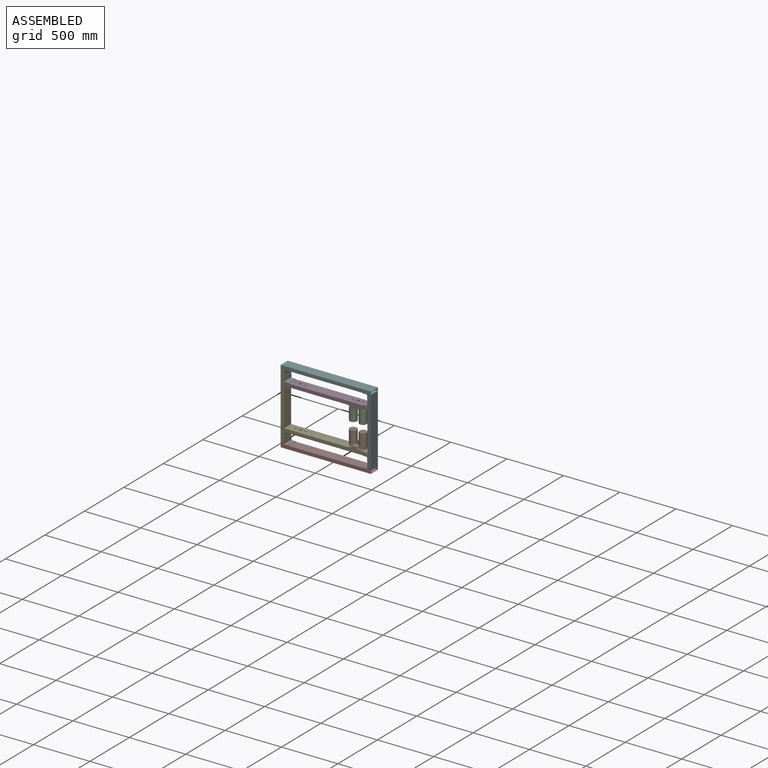
[diagram: assembled view]
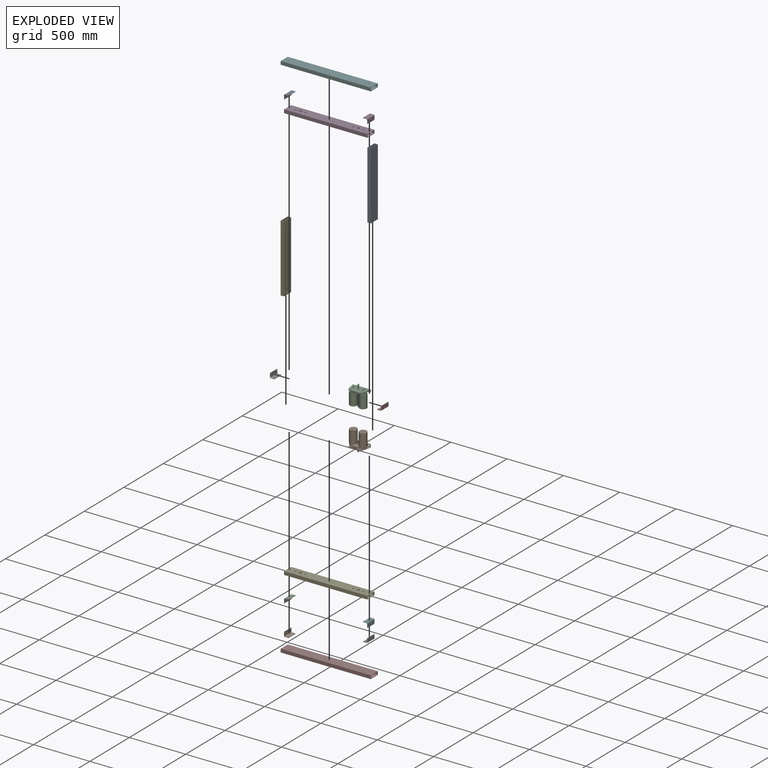
[diagram: exploded view]
GUIDED TOUR — MATED ASSEMBLY WITH SUBASSEMBLIES (Onshape document c86a4f6575f6017475b67a72, AutoMate assembly c86a4f6575f6017475b67a72_9b0eb808f1c5a23047f3c96d_129d4300e8e7a1c445e2efac_default)

This assembly has 30 component occurrences arranged in 16 top-level units: 14 individual components plus 2 subassemblies (S0, S1). The tour has two levels: first the top level, where each subassembly is treated as one rigid unit; then each subassembly is toured internally in its own section (nesting deeper than one subassembly level is flattened into its subassembly's section).

Components are labeled P0..P29 across the whole record; subassembly units are labeled S0..S1. A mate is a constraint between two units; its type names the relative motion it leaves free:
  FASTENED — locks the two components together rigidly (no relative motion).
Axis/direction vectors are unit vectors and 'through' points are millimeter coordinates, both in the assembly's world frame.

TOP-LEVEL MATES (between units; each subassembly's internal mates are listed in its own section)
  1. FASTENED "Fastened 5": P25 <-> P24, direction (0.000, 0.000, 1.000) through (-180.54, -116.82, -42.28) mm
  2. FASTENED "Fastened 12": P10 <-> P3, direction (0.000, 0.000, -1.000) through (-180.54, -116.82, 357.72) mm
  3. FASTENED "Fastened 6": P19 <-> P24, direction (0.000, 0.000, 1.000) through (-856.54, -116.82, -42.28) mm
  4. FASTENED "Fastened 4": P28 <-> P8, direction (0.000, 0.000, 1.000) through (-180.54, -116.82, -142.28) mm
  5. FASTENED "Fastened 9": P5 <-> P11, direction (0.000, 0.000, -1.000) through (-856.54, -116.82, 457.72) mm
  6. FASTENED "Fastened 7": P18 <-> P28, direction (0.000, 0.000, -1.000) through (-856.54, -116.82, -142.28) mm
  7. FASTENED "Fastened 11": S1 <-> P3, direction (0.000, 0.000, 1.000) through (-233.22, -117.31, 327.72) mm
  8. FASTENED "Fastened 13": P27 <-> P3, direction (0.000, 0.000, -1.000) through (-856.54, -116.82, 357.72) mm
  9. FASTENED "Fastened 3": P4 <-> P5, direction (0.000, 0.000, 1.000) through (-918.54, -108.82, 457.72) mm
  10. FASTENED "Fastened 8": P5 <-> P23, direction (0.000, 0.000, -1.000) through (-180.54, -116.82, 457.72) mm
  11. FASTENED "Fastened 10": P24 <-> S0, direction (0.000, 0.000, 1.000) through (-233.22, -117.31, -12.28) mm
  12. FASTENED "Fastened 1": P0 <-> P28, direction (0.000, 0.000, -1.000) through (-118.54, -108.82, -142.28) mm
  13. FASTENED "Fastened 2": P28 <-> P4, direction (0.000, 0.000, 1.000) through (-918.54, -108.82, -142.28) mm

TOP-LEVEL ASSEMBLY ORDER
  1. S0 — the base component [order heuristic]
  2. S1 — core [order heuristic]
  3. P3 — core [order heuristic]
  4. P5 [order verified]
  5. P19 [order verified]
  6. P25 [order verified]
  7. P8 [order verified]
  8. P18 [order verified]
  9. P0 [order verified]
  10. P4 [order verified]
  11. P27 [order verified]
  12. P10 [order verified]
  13. P23 [order verified]
  14. P11 [order verified]
  15. P24 — core [order heuristic]
  16. P28 [order verified]
Order-tag legend:
  [order verified] — this step's position reverses a verified removal order: the component was checked to insert without passing through the ones already placed.
  [order heuristic] — the first 4 components form the assembly's core: parts whose collision-free extraction could not be verified, listed in mate-graph order.

Of the 30 component occurrences, 8 carry the full construction recipe — the FeatureScript program that regenerates the part's solid from scratch; the rest are supplied as boundary geometry only. Each toured unit is shown spotlighted twice — assembled, then exploded with a leader line back to its socket (green = recipe-attached component, orange = geometry-only, blue = subassembly unit; the rest desaturated gray).
NOTE — this tour is split across 3 documents so each fits a 32k-token context. This is document 1: the component sections continue in the remaining 2 documents, each repeating the header above.
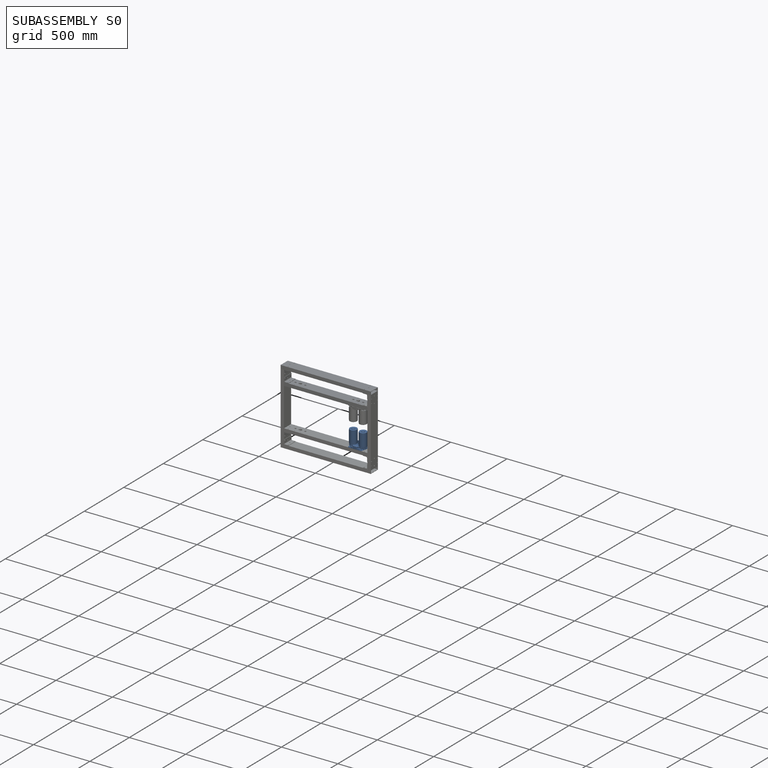
[diagram: subassembly S0 — assembled]
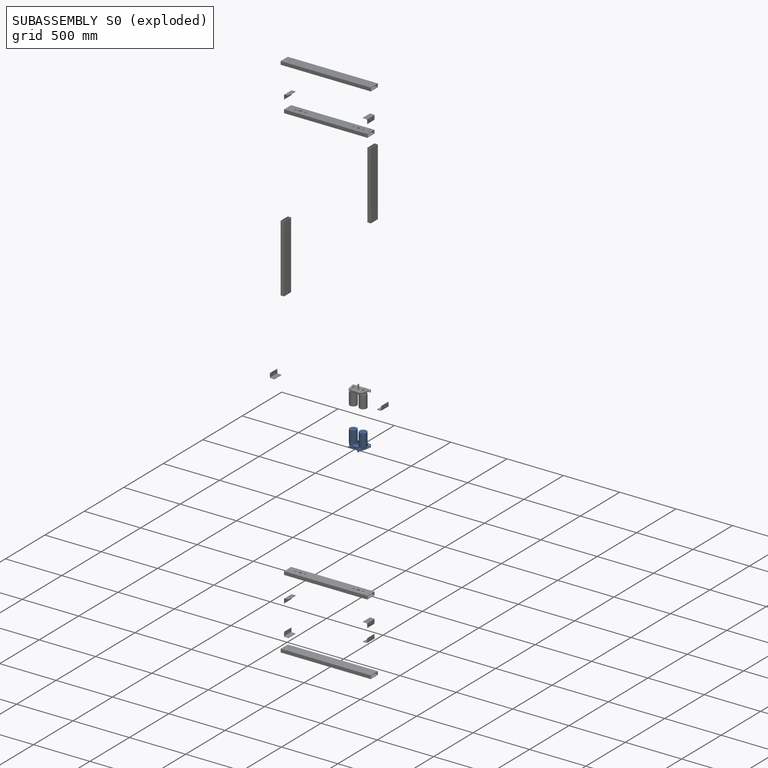
[diagram: subassembly S0 — exploded]
SUBASSEMBLY S0 — 8 components (P1, P6, P9, P13, P15, P16, P20, P22), of which 0 recipe-attached; toured below.
Held by: FASTENED mate "Fastened 10" to P24.
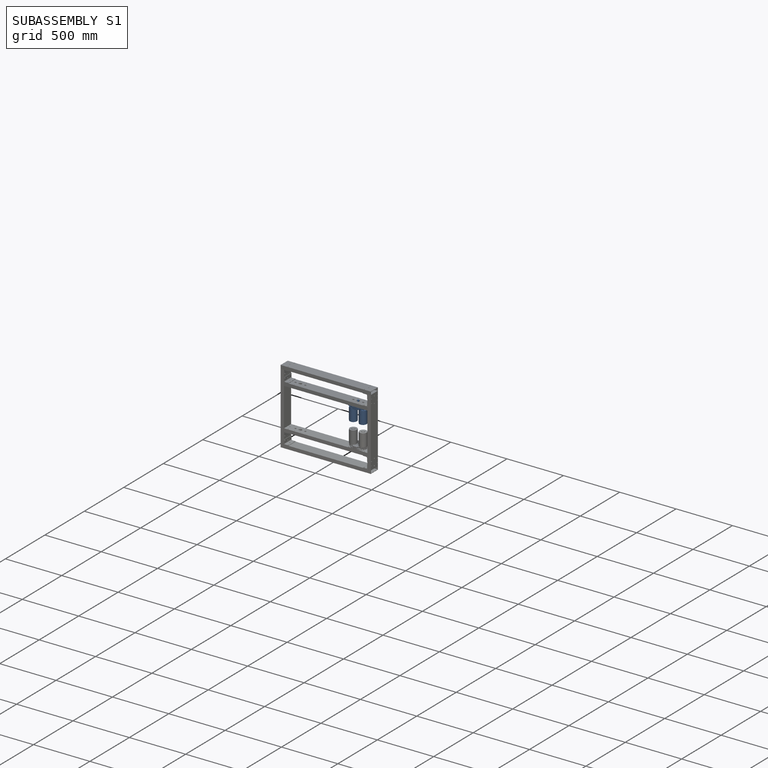
[diagram: subassembly S1 — assembled]
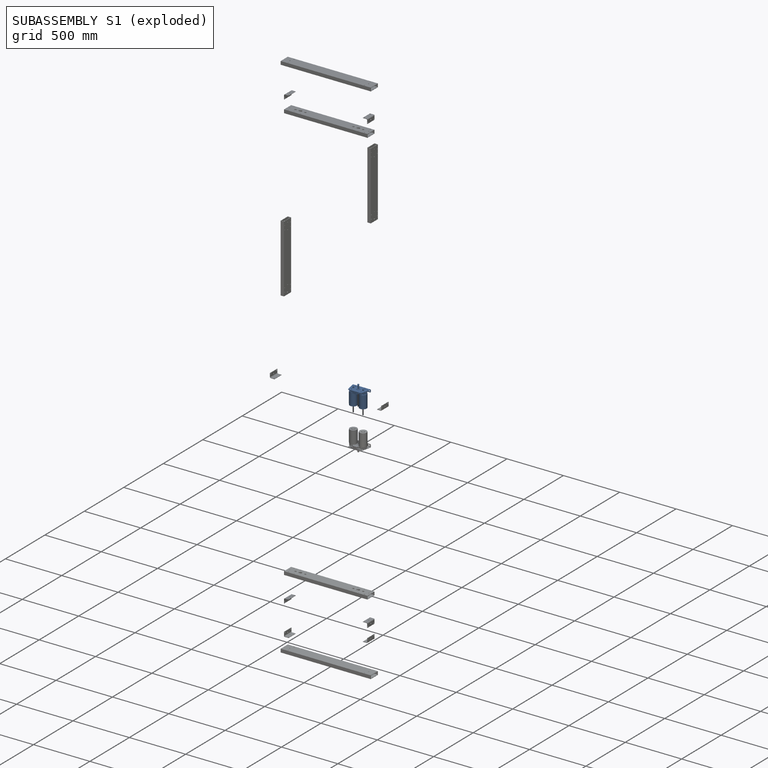
[diagram: subassembly S1 — exploded]
SUBASSEMBLY S1 — 8 components (P2, P7, P12, P14, P17, P21, P26, P29), of which 0 recipe-attached; toured below.
Held by: FASTENED mate "Fastened 11" to P3.
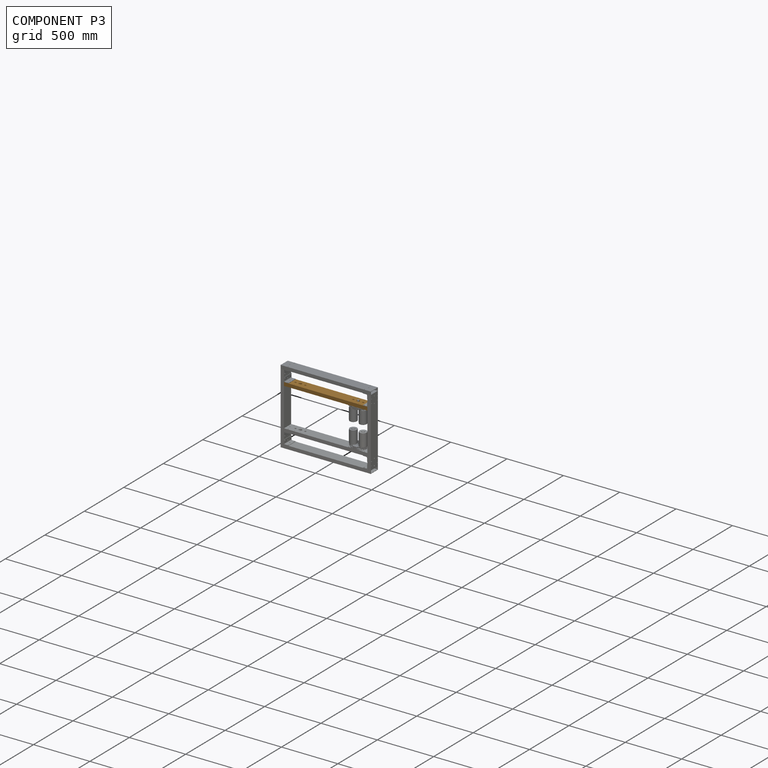
[diagram: component P3 — assembled]
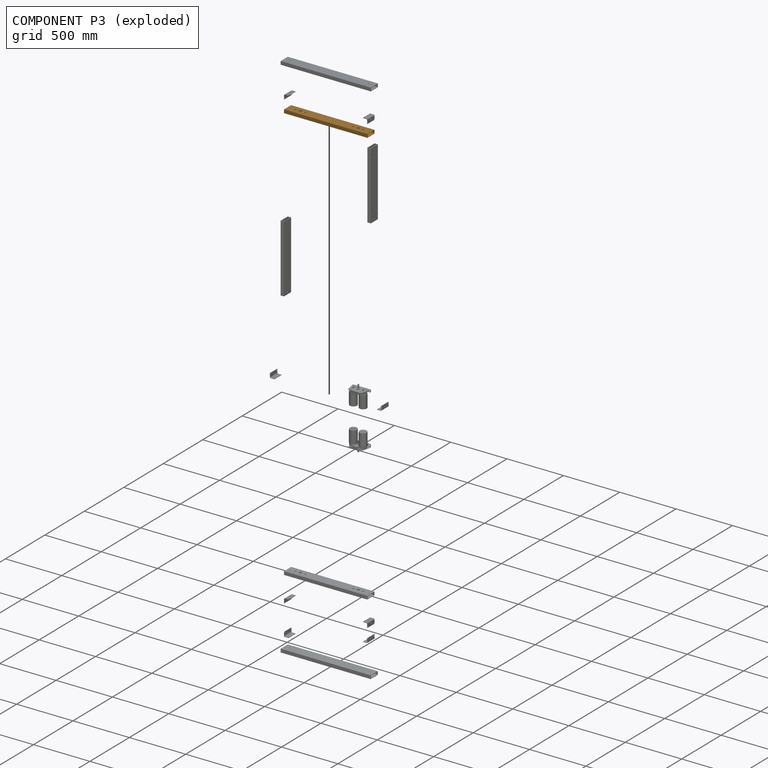
[diagram: component P3 — exploded]
COMPONENT P3 — geometry summary (no construction recipe available for this part):
  bounding box: 740.0 x 90.0 x 30.0 mm
  B-rep topology: 1 solid, 50 faces, 288 edges
  volume: 490446 mm^3 (25% of its bounding box)
  symmetry: 2-fold rotationally symmetric about the x axis; 2-fold rotationally symmetric about the y axis; 2-fold rotationally symmetric about the z axis; mirror-symmetric across its x mid-plane, y mid-plane, z mid-plane
Held by: FASTENED mate "Fastened 12" to P10; FASTENED mate "Fastened 11" to P2; FASTENED mate "Fastened 13" to P27.
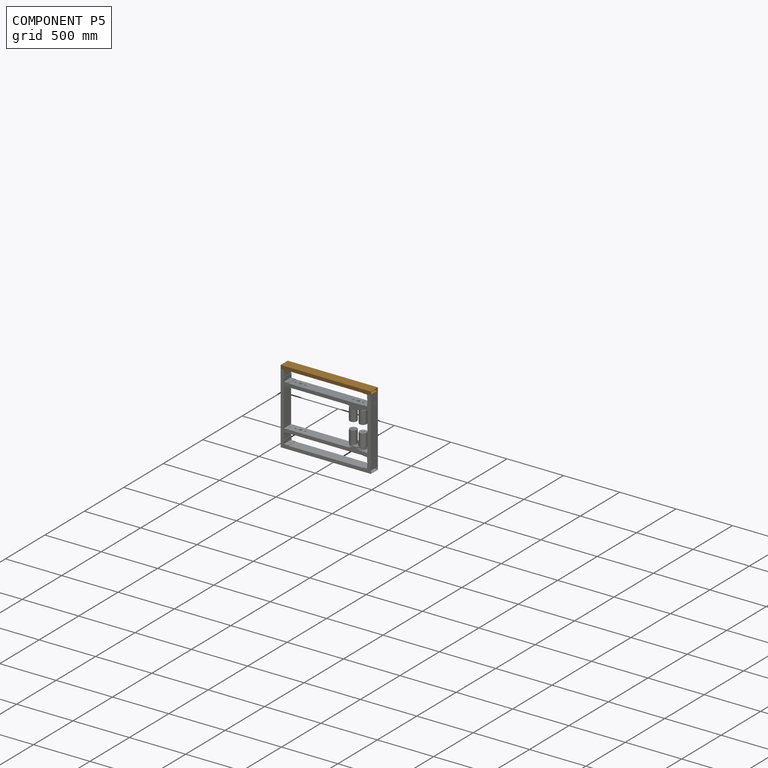
[diagram: component P5 — assembled]
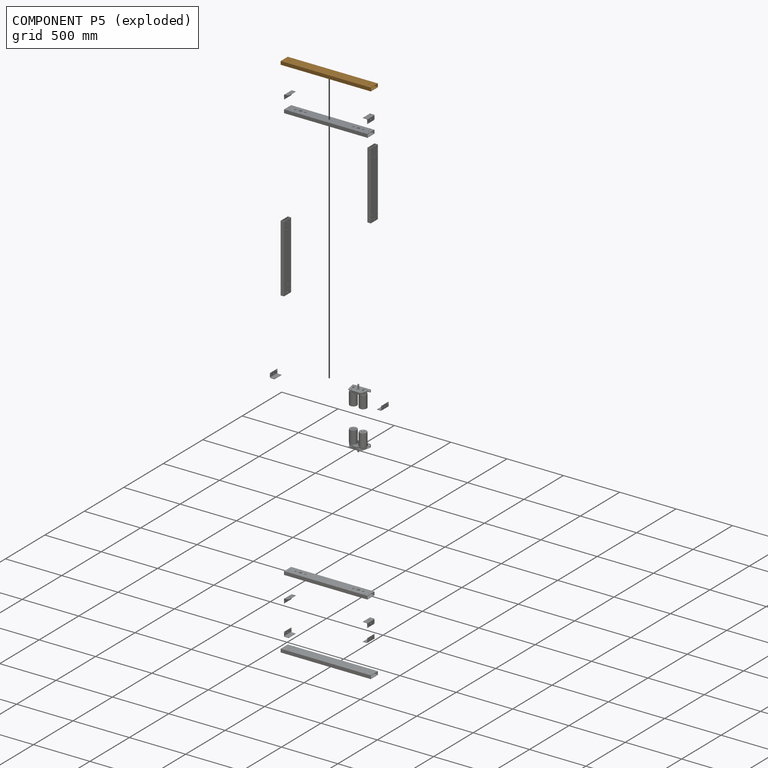
[diagram: component P5 — exploded]
COMPONENT P5 — geometry summary (no construction recipe available for this part):
  bounding box: 800.0 x 90.0 x 30.0 mm
  B-rep topology: 1 solid, 22 faces, 120 edges
  volume: 545390 mm^3 (25% of its bounding box)
  symmetry: 2-fold rotationally symmetric about the x axis; 2-fold rotationally symmetric about the y axis; 2-fold rotationally symmetric about the z axis; mirror-symmetric across its x mid-plane, y mid-plane, z mid-plane
Held by: FASTENED mate "Fastened 9" to P11; FASTENED mate "Fastened 3" to P4; FASTENED mate "Fastened 8" to P23.
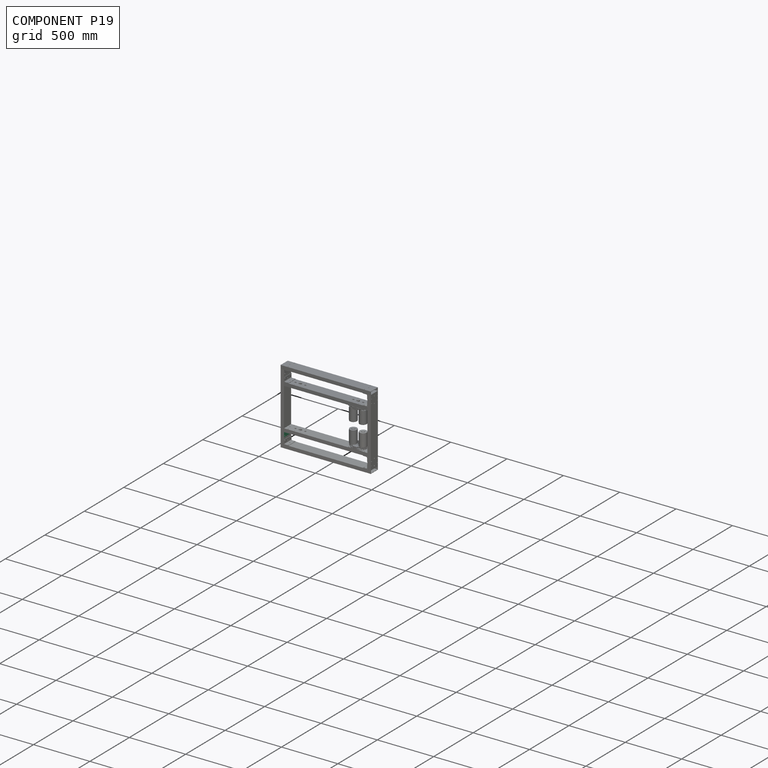
[diagram: component P19 — assembled]
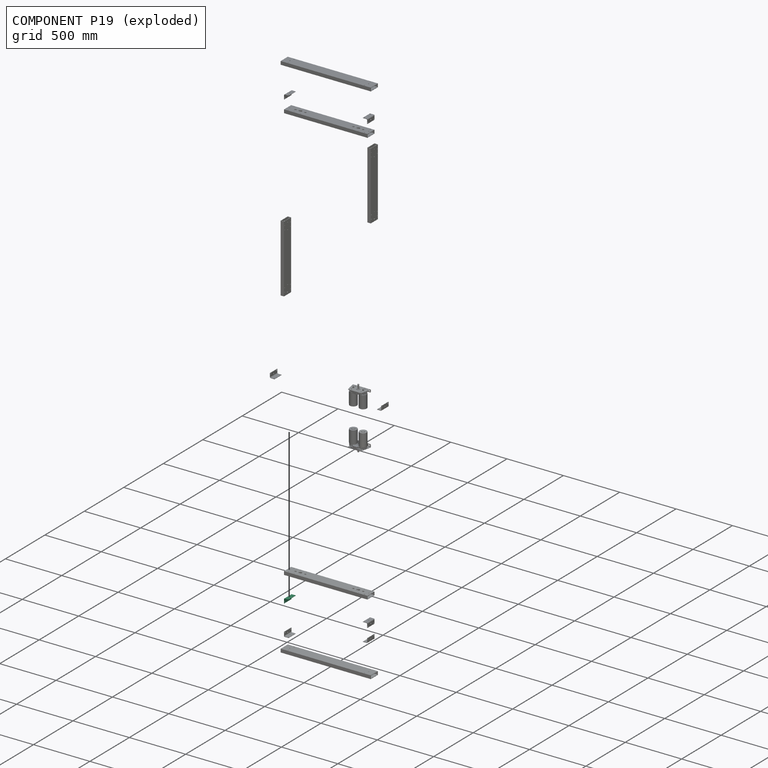
[diagram: component P19 — exploded]
COMPONENT P19 — same part as P8 (CADFS 00989132); its construction recipe is shown at P8.
Held by: FASTENED mate "Fastened 6" to P24.
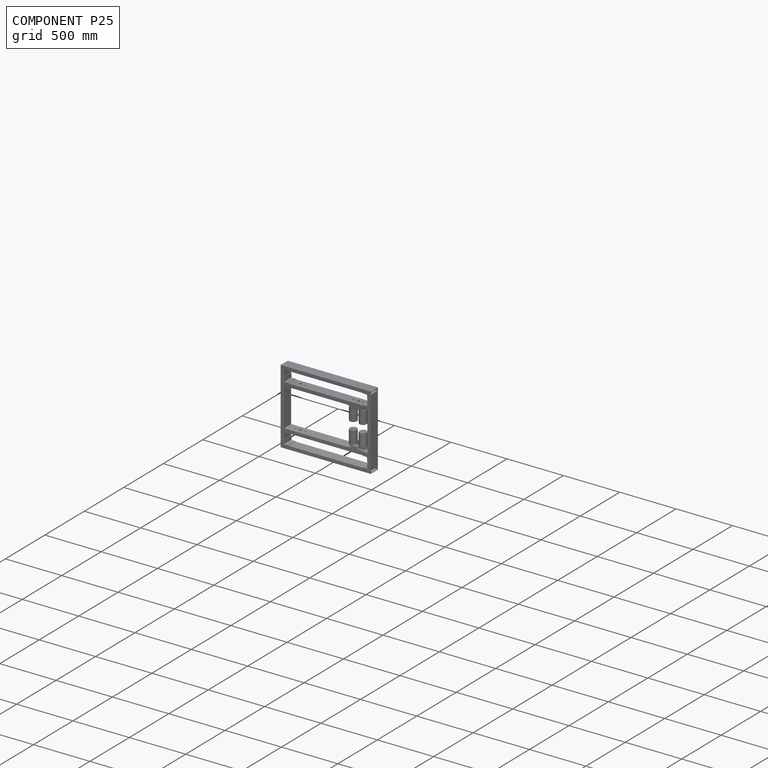
[diagram: component P25 — assembled]
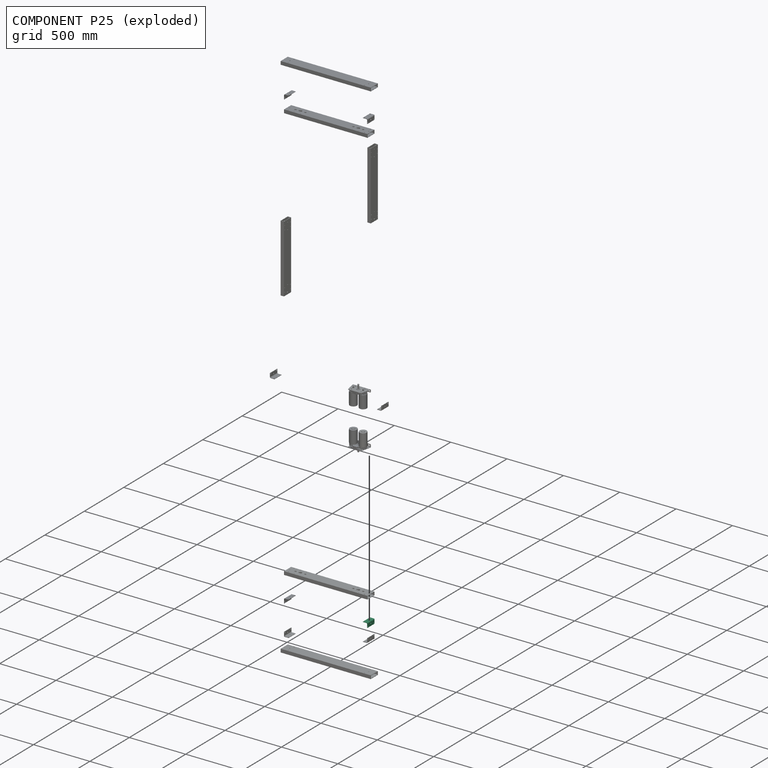
[diagram: component P25 — exploded]
COMPONENT P25 — same part as P8 (CADFS 00989132); its construction recipe is shown at P8.
Held by: FASTENED mate "Fastened 5" to P24.
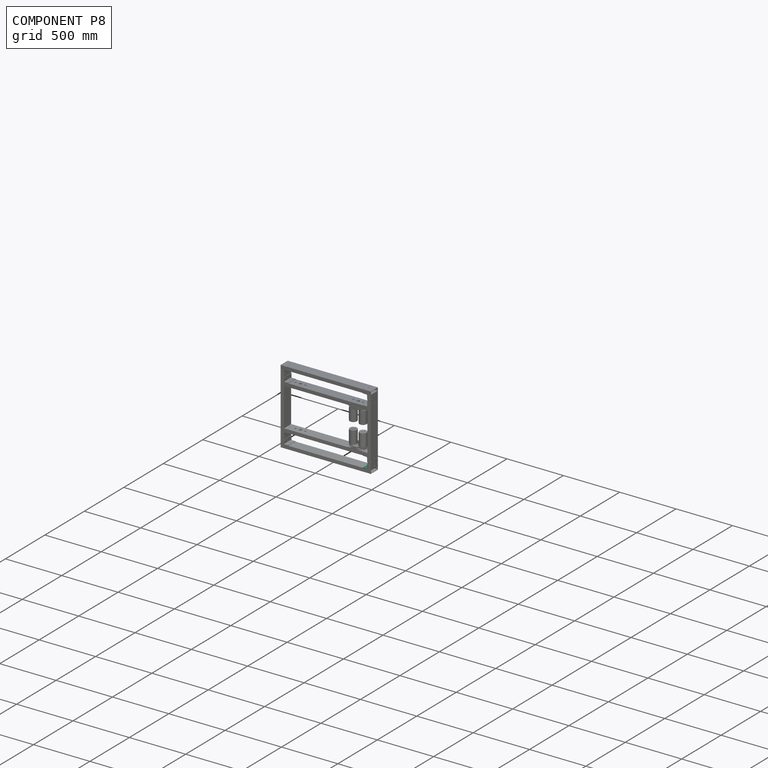
[diagram: component P8 — assembled]
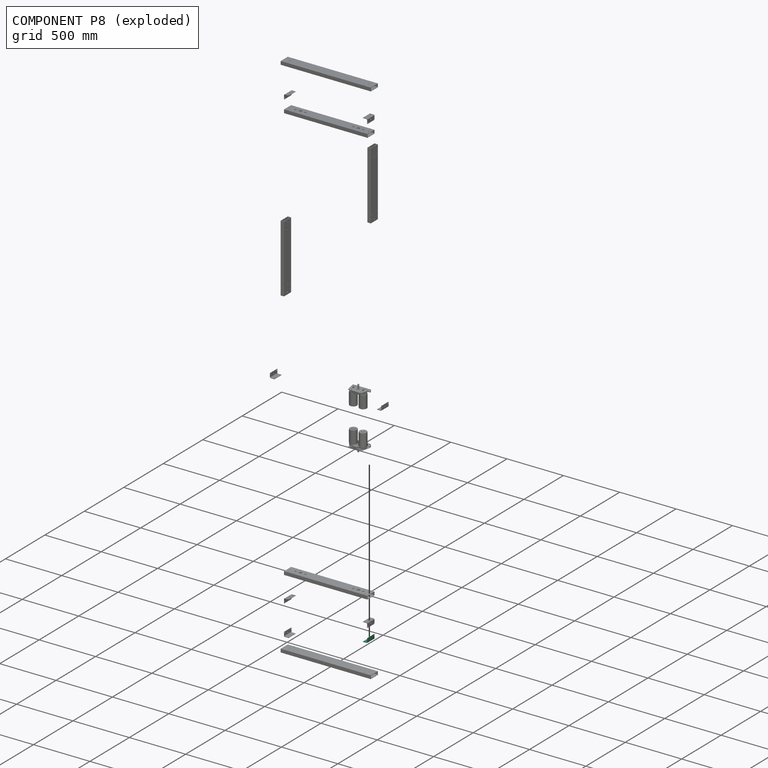
[diagram: component P8 — exploded]
COMPONENT P8 — recipe-attached (CADFS 00989132, mesh-verified: the recipe's output STEP matches this component's geometry to below the mesh-comparison resolution (tessellation chordal tolerance ~0.159 mm)).
Held by: FASTENED mate "Fastened 4" to P28.
Construction recipe (FeatureScript — the CAD program that rebuilds this solid; sketch coordinates are in the units given by the * unit suffixes, e.g. mm):

FeatureScript 1511;
import(path : "onshape/std/geometry.fs", version : "1511.0");
import(path : "onshape/std/common.fs", version : "1511.0");
const mm = millimeter;
const VERTEX = EntityType.VERTEX;
const EDGE = EntityType.EDGE;
const FACE = EntityType.FACE;
const BODY = EntityType.BODY;
function v(x, y){return vector(x, y);}
function OD(order){return orderDisambiguation(order);}
function OSD(set){return originalSetDisambiguation(set);}
function TD(topology){return topologyDisambiguation(topology);}
function TDD(query){return trueDependencyDisambiguation(query);}
function sQuery(a, b, c) {return sketchEntityQuery(a, b, c);}

annotation { "Feature Type Name" : "Feature", "Feature Type Description" : "" }
export const myFeature = defineFeature(function(context is Context, id is Id, definition is map)
    precondition{}
    {
        {
            var Q0;
            Q0=qCreatedBy(makeId("Top.planeOp"),FACE);
            var sketch = newSketch(context, id + "F0", { "sketchPlane" : qUnion([Q0])});
            skLineSegment(sketch, "E0", {"start": v(0, 0) * mm, "end": v(-40, 0) * mm});
            skLineSegment(sketch, "E1", {"start": v(0, 0) * mm, "end": v(0, -40) * mm});
            skLineSegment(sketch, "E2.0", {"start": v(-3, -3) * mm, "end": v(-3, -40) * mm});
            skLineSegment(sketch, "E2.1", {"start": v(-3, -3) * mm, "end": v(-40, -3) * mm});
            skLineSegment(sketch, "E3", {"start": v(-3, -40) * mm, "end": v(0, -40) * mm});
            skLineSegment(sketch, "E4", {"start": v(-40, -3) * mm, "end": v(-40, 0) * mm});
            skSolve(sketch);
        }
        {
            var Q0;
            Q0 = qSketchRegion(id + "F0", true);
            extrude(context, id + "F1", {"entities" : qUnion([Q0]), "endBound" : BoundingType.SYMMETRIC, "depth" : 90 * mm, "offsetDistance" : 25 * mm});
        }
        {
            var Q0;
            Q0=makeQuery(id+"F1.opExtrude","SWEPT_EDGE",EDGE,{"disambiguationData":[OSD([sQuery(id+"F0.wireOp",EDGE,"E2.0"),sQuery(id+"F0.wireOp",EDGE,"E2.1")])]});
            var Q1;
            Q1=makeQuery(id+"F1.opExtrude","SWEPT_EDGE",EDGE,{"disambiguationData":[OSD([sQuery(id+"F0.wireOp",EDGE,"E0"),sQuery(id+"F0.wireOp",EDGE,"E1")])]});
            fillet(context, id + "F2", {"entities" : qUnion([Q0, Q1]), "radius" : 7 * mm, "tangentPropagation" : true, "allowEdgeOverflow" : false});
        }
        {
            var Q0;
            Q0=makeQuery(id+"F1.opExtrude","SWEPT_FACE",FACE,{"disambiguationData":[OSD([sQuery(id+"F0.wireOp",EDGE,"E2.1")])]});
            var sketch = newSketch(context, id + "F3", { "sketchPlane" : qUnion([Q0])});
            skLineSegment(sketch, "E5", {"start": v(-40, 0) * mm, "end": v(0, 0) * mm, "construction": true});
            skCircle(sketch, "E6", {"center": v(-32, 37) * mm, "radius": 4 * mm});
            skCircle(sketch, "E7", {"center": v(-20, 0) * mm, "radius": 4 * mm});
            skCircle(sketch, "E8", {"center": v(-32, -37) * mm, "radius": 4 * mm});
            skSolve(sketch);
        }
        {
            var Q0;
            Q0 = qSketchRegion(id + "F3", true);
            extrude(context, id + "F4", {"entities" : qUnion([Q0]), "operationType" : NewBodyOperationType.REMOVE, "endBound" : BoundingType.THROUGH_ALL, "oppositeDirection" : true, "depth" : 25 * mm, "offsetDistance" : 25 * mm});
        }
        {
            var Q0;
            Q0=makeQuery(id+"F1.opExtrude","SWEPT_FACE",FACE,{"disambiguationData":[OSD([sQuery(id+"F0.wireOp",EDGE,"E2.0")])]});
            var sketch = newSketch(context, id + "F5", { "sketchPlane" : qUnion([Q0])});
            skLineSegment(sketch, "E9", {"start": v(40, 0) * mm, "end": v(0, 0) * mm, "construction": true});
            skCircle(sketch, "E10", {"center": v(32, 37) * mm, "radius": 4 * mm});
            skCircle(sketch, "E11", {"center": v(20, 0) * mm, "radius": 4 * mm});
            skCircle(sketch, "E12", {"center": v(32, -37) * mm, "radius": 4 * mm});
            skSolve(sketch);
        }
        {
            var Q0;
            Q0 = qSketchRegion(id + "F5", true);
            extrude(context, id + "F6", {"entities" : qUnion([Q0]), "operationType" : NewBodyOperationType.REMOVE, "endBound" : BoundingType.THROUGH_ALL, "oppositeDirection" : true, "depth" : 25 * mm, "offsetDistance" : 25 * mm});
        }
    });
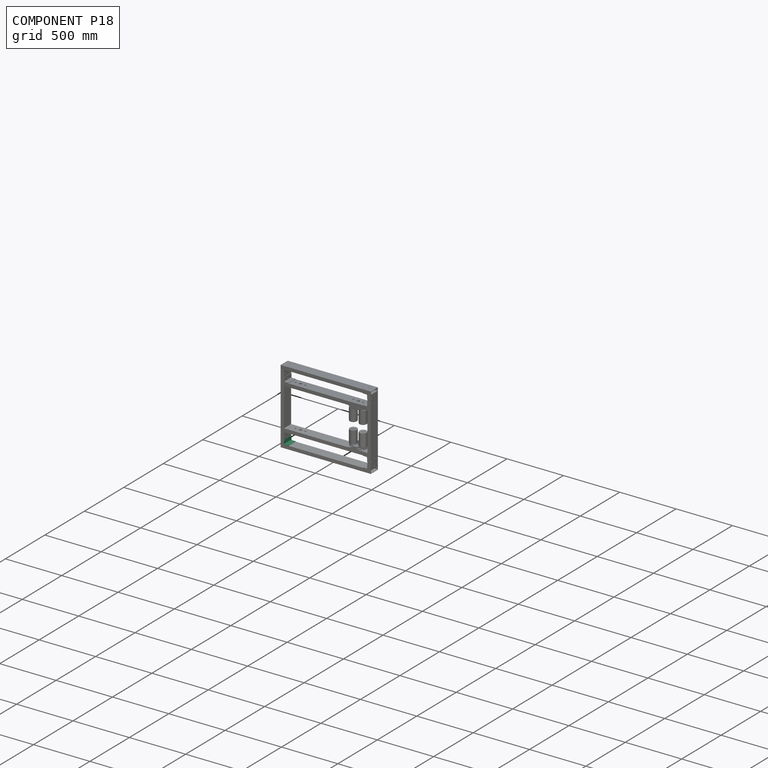
[diagram: component P18 — assembled]
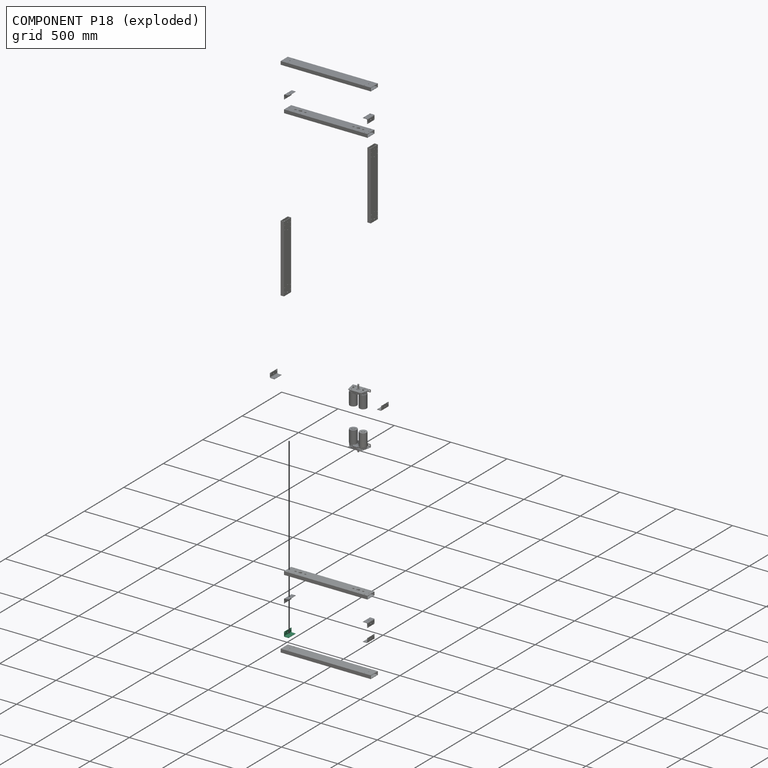
[diagram: component P18 — exploded]
COMPONENT P18 — same part as P8 (CADFS 00989132); its construction recipe is shown at P8.
Held by: FASTENED mate "Fastened 7" to P28.
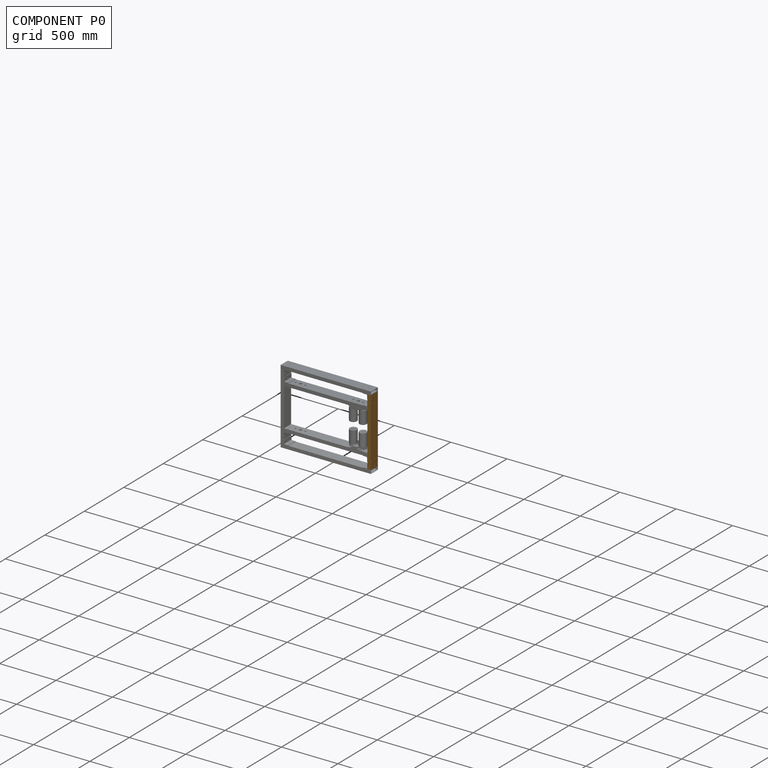
[diagram: component P0 — assembled]
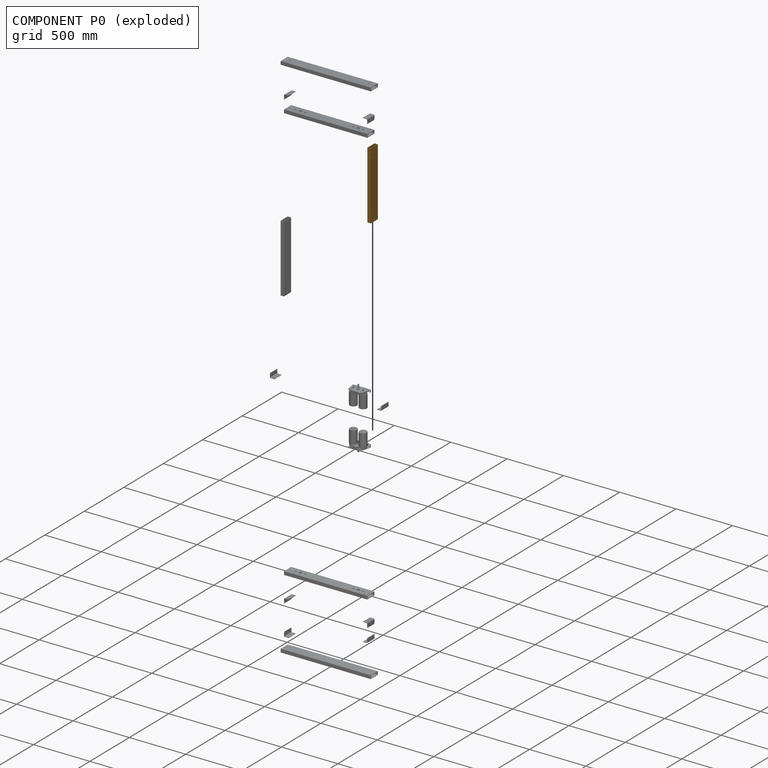
[diagram: component P0 — exploded]
COMPONENT P0 — geometry summary (no construction recipe available for this part):
  bounding box: 600.0 x 90.0 x 30.0 mm
  B-rep topology: 1 solid, 34 faces, 192 edges
  volume: 406781 mm^3 (25% of its bounding box)
  symmetry: 2-fold rotationally symmetric about the x axis; 2-fold rotationally symmetric about the y axis; 2-fold rotationally symmetric about the z axis; mirror-symmetric across its x mid-plane, y mid-plane, z mid-plane
Held by: FASTENED mate "Fastened 1" to P28.
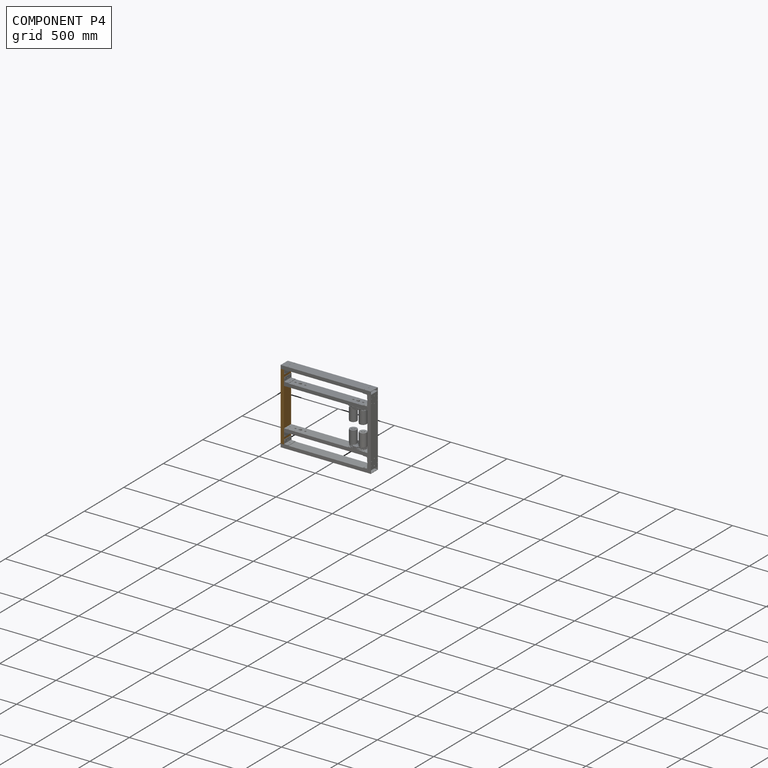
[diagram: component P4 — assembled]
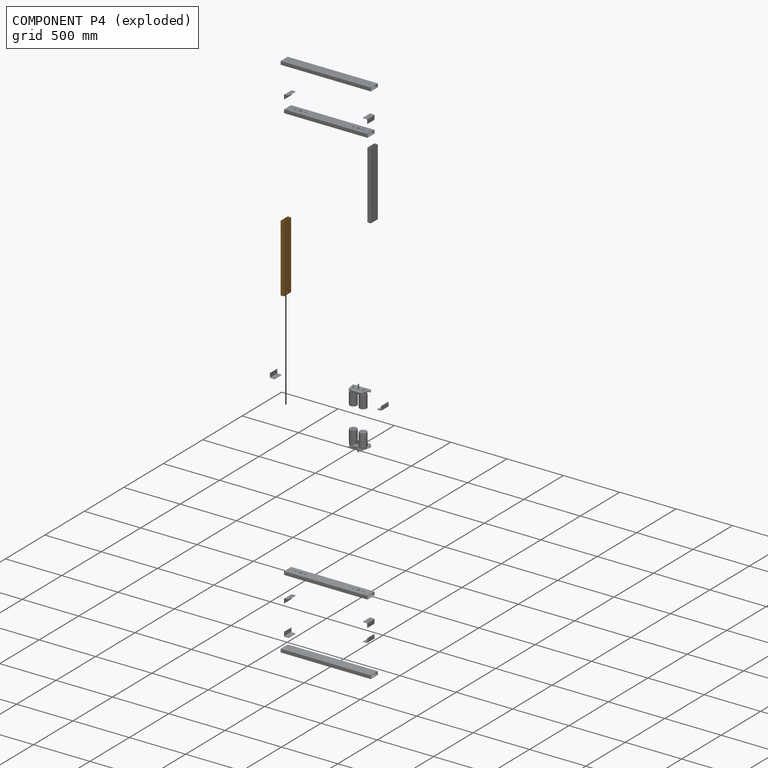
[diagram: component P4 — exploded]
COMPONENT P4 — geometry summary (no construction recipe available for this part):
  bounding box: 600.0 x 90.0 x 30.0 mm
  B-rep topology: 1 solid, 34 faces, 192 edges
  volume: 406781 mm^3 (25% of its bounding box)
  symmetry: 2-fold rotationally symmetric about the x axis; 2-fold rotationally symmetric about the y axis; 2-fold rotationally symmetric about the z axis; mirror-symmetric across its x mid-plane, y mid-plane, z mid-plane
Held by: FASTENED mate "Fastened 3" to P5; FASTENED mate "Fastened 2" to P28.
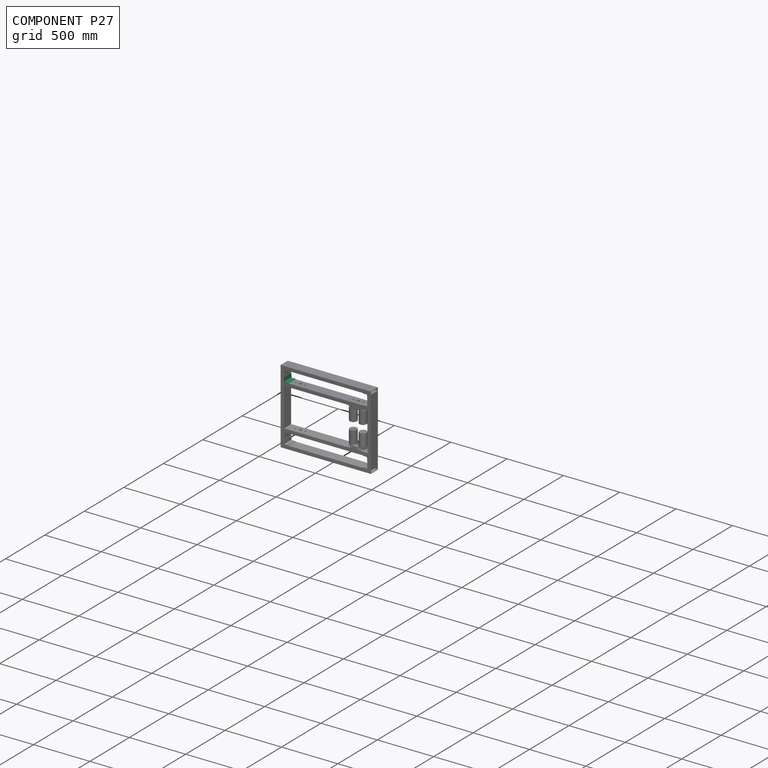
[diagram: component P27 — assembled]
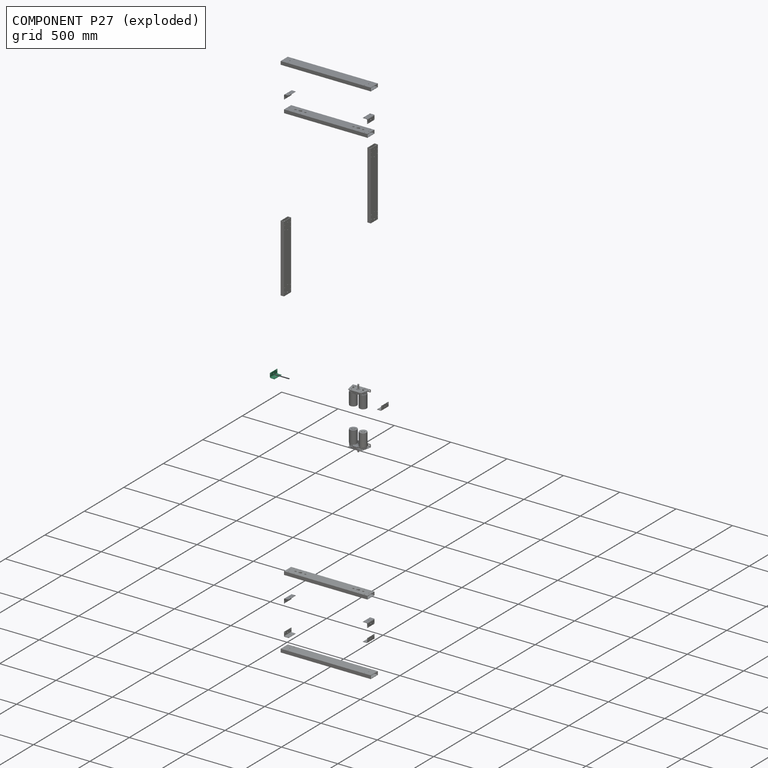
[diagram: component P27 — exploded]
COMPONENT P27 — same part as P8 (CADFS 00989132); its construction recipe is shown at P8.
Held by: FASTENED mate "Fastened 13" to P3.
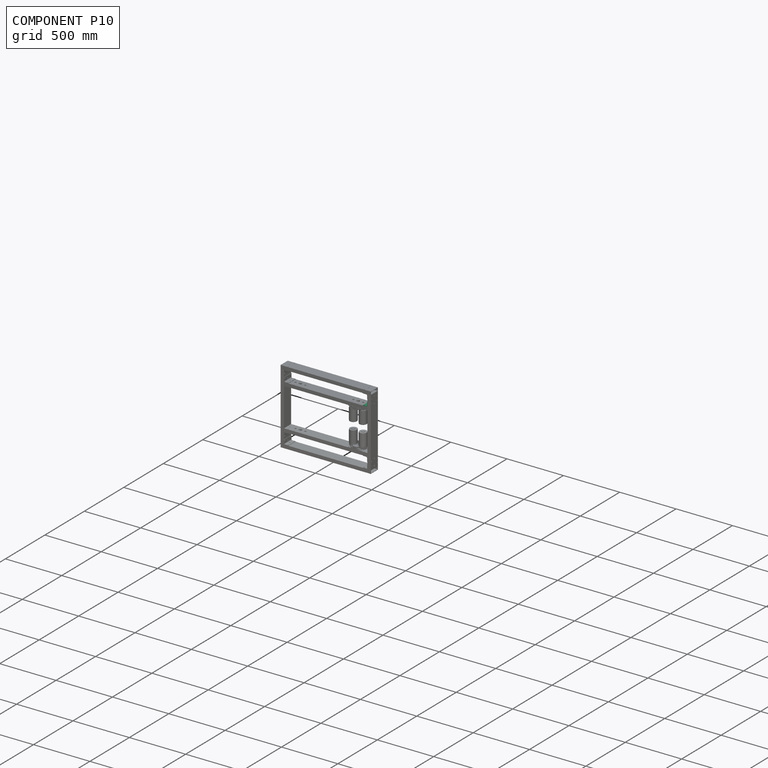
[diagram: component P10 — assembled]
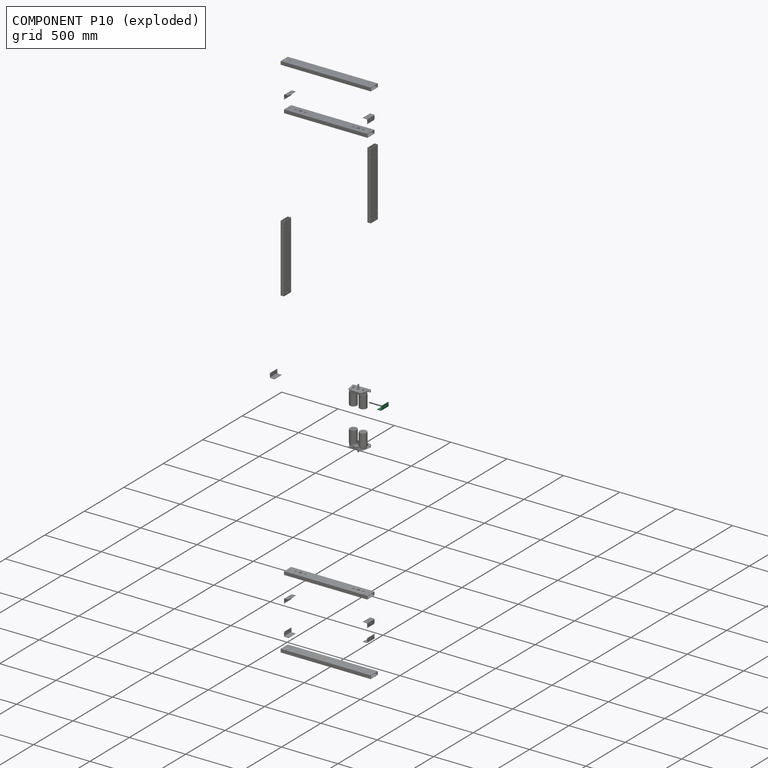
[diagram: component P10 — exploded]
COMPONENT P10 — same part as P8 (CADFS 00989132); its construction recipe is shown at P8.
Held by: FASTENED mate "Fastened 12" to P3.
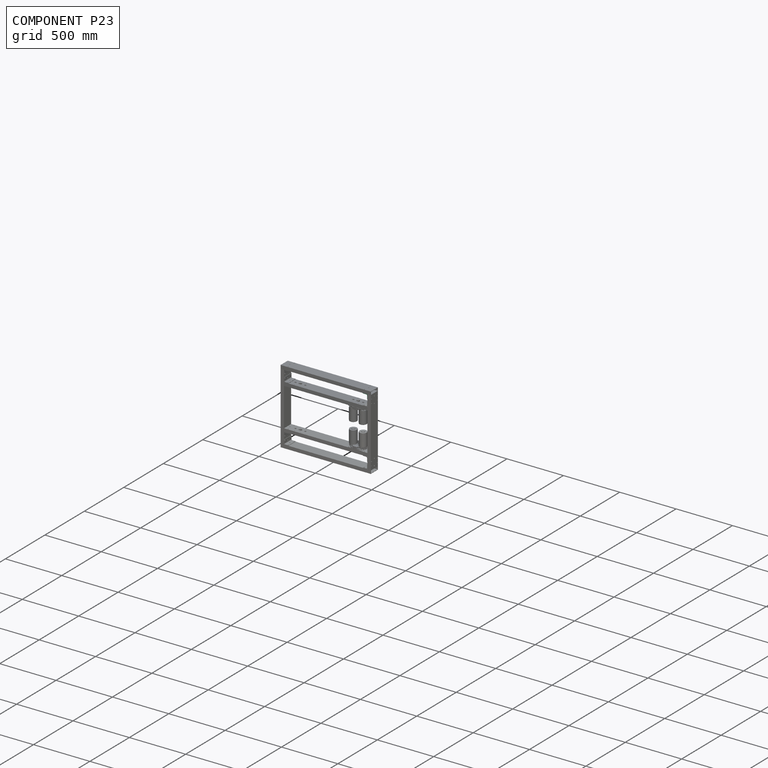
[diagram: component P23 — assembled]
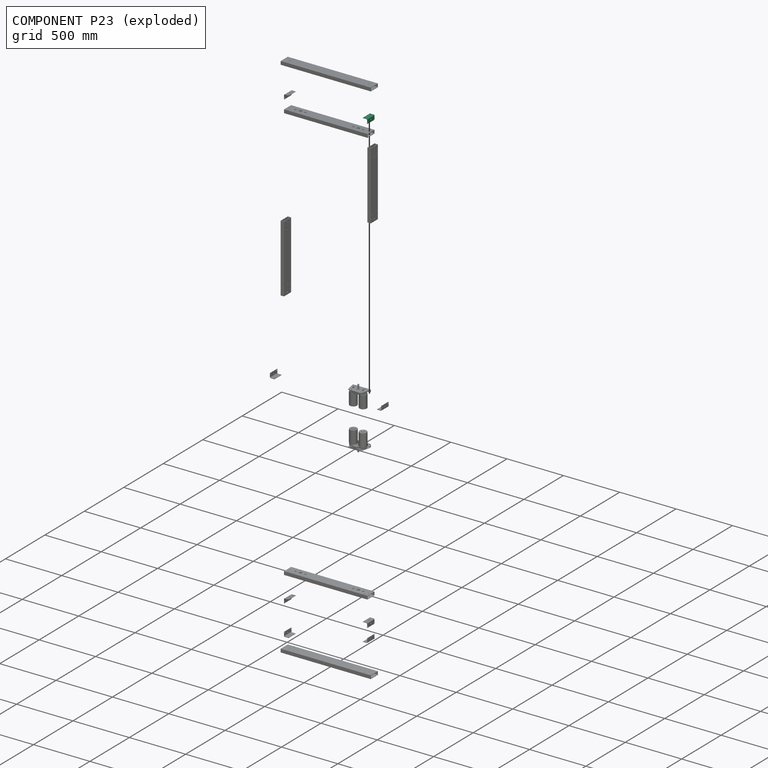
[diagram: component P23 — exploded]
COMPONENT P23 — same part as P8 (CADFS 00989132); its construction recipe is shown at P8.
Held by: FASTENED mate "Fastened 8" to P5.
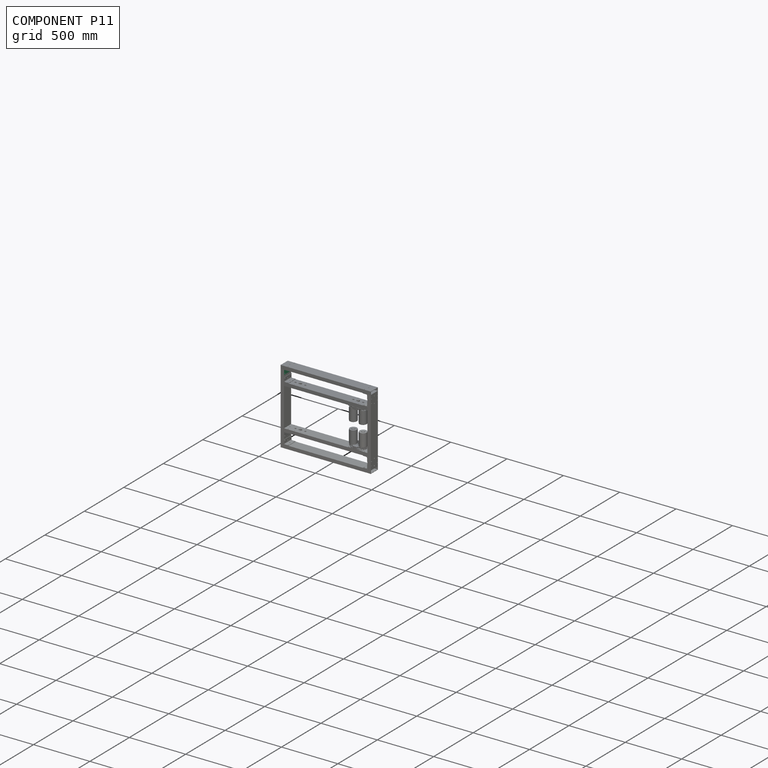
[diagram: component P11 — assembled]
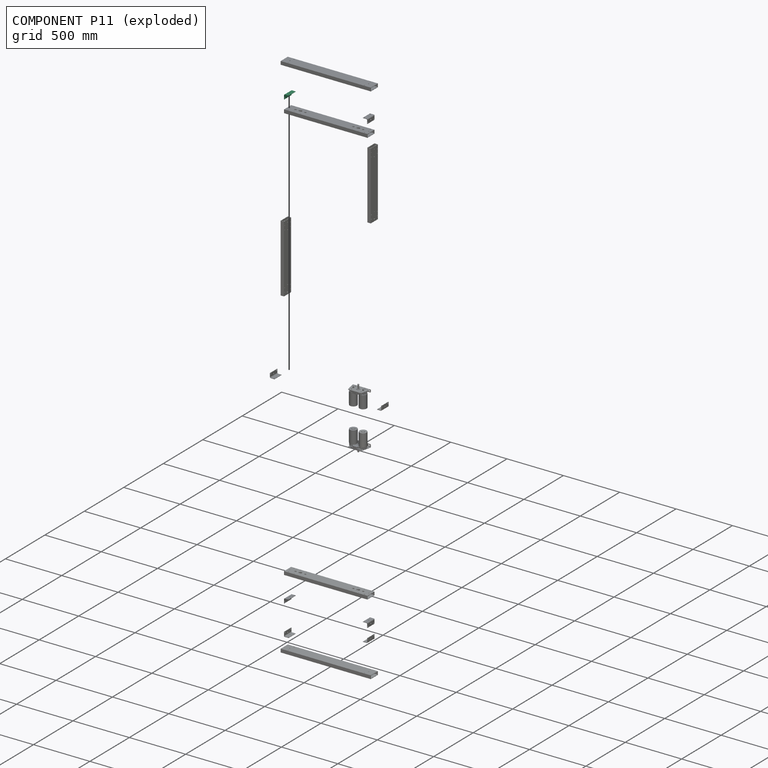
[diagram: component P11 — exploded]
COMPONENT P11 — same part as P8 (CADFS 00989132); its construction recipe is shown at P8.
Held by: FASTENED mate "Fastened 9" to P5.
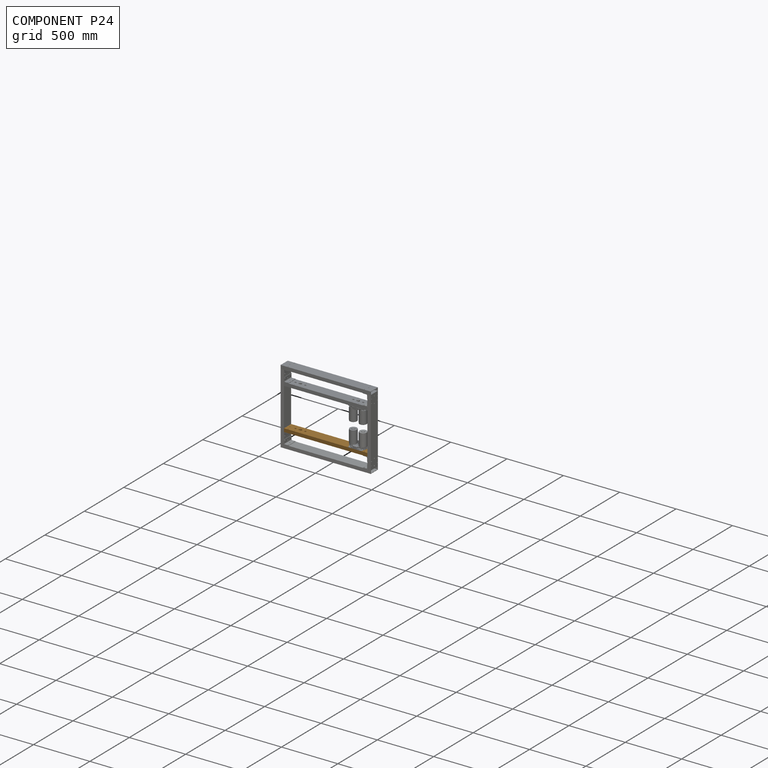
[diagram: component P24 — assembled]
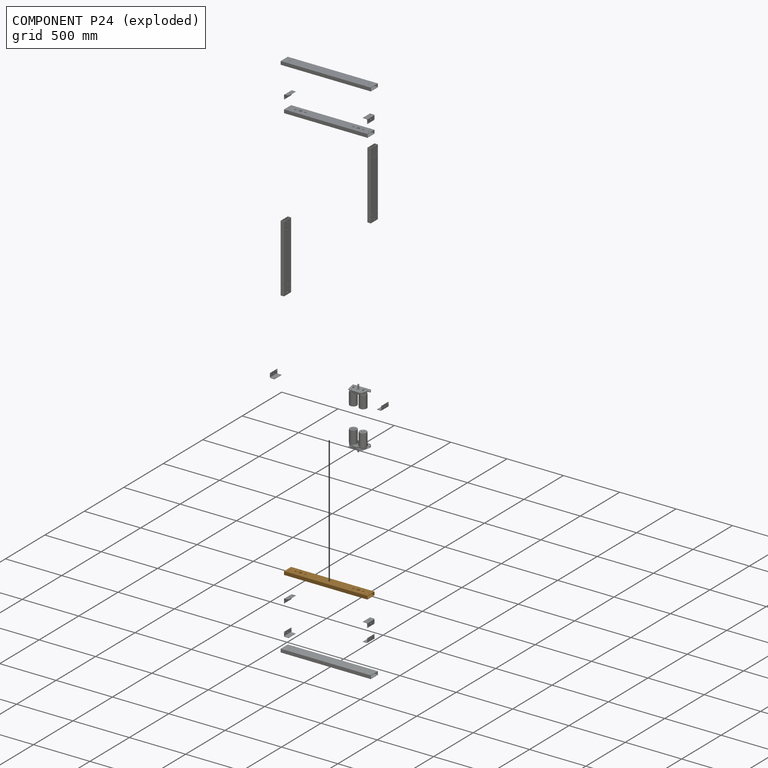
[diagram: component P24 — exploded]
COMPONENT P24 — geometry summary (no construction recipe available for this part):
  bounding box: 740.0 x 90.0 x 30.0 mm
  B-rep topology: 1 solid, 50 faces, 288 edges
  volume: 490446 mm^3 (25% of its bounding box)
  symmetry: 2-fold rotationally symmetric about the x axis; 2-fold rotationally symmetric about the y axis; 2-fold rotationally symmetric about the z axis; mirror-symmetric across its x mid-plane, y mid-plane, z mid-plane
Held by: FASTENED mate "Fastened 5" to P25; FASTENED mate "Fastened 6" to P19; FASTENED mate "Fastened 10" to P1.
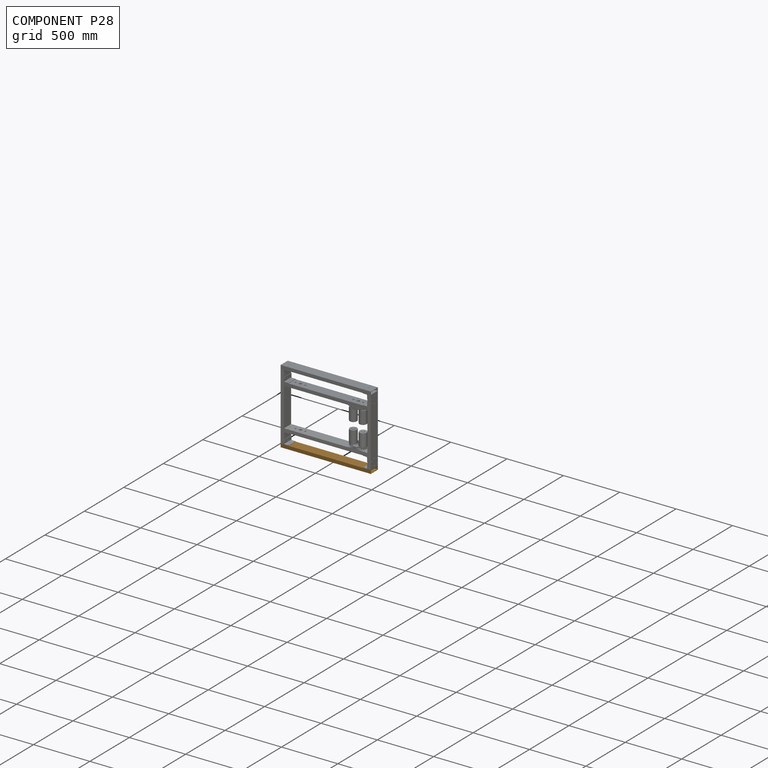
[diagram: component P28 — assembled]
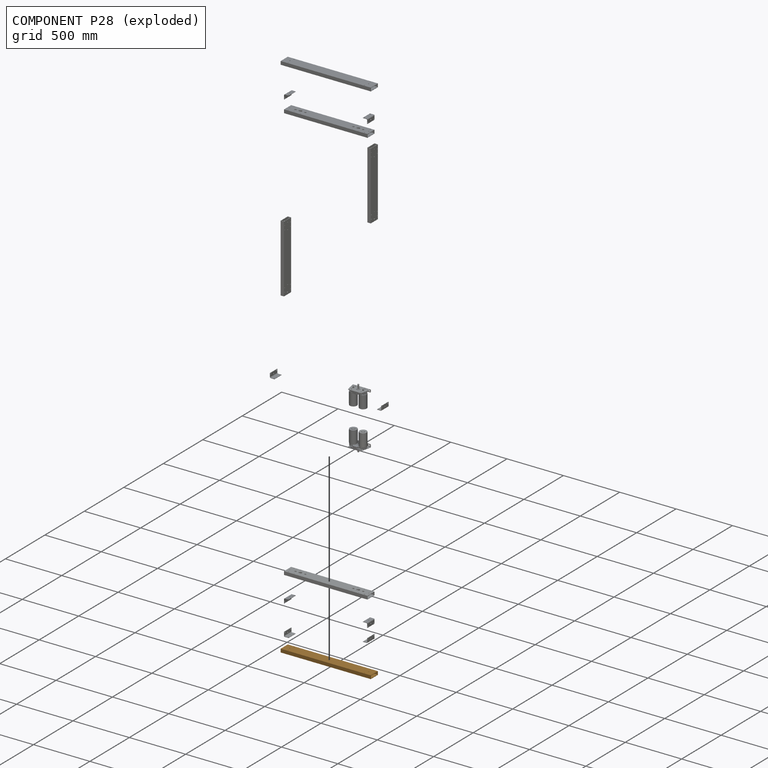
[diagram: component P28 — exploded]
COMPONENT P28 — geometry summary (no construction recipe available for this part):
  bounding box: 800.0 x 90.0 x 30.0 mm
  B-rep topology: 1 solid, 22 faces, 120 edges
  volume: 545390 mm^3 (25% of its bounding box)
  symmetry: 2-fold rotationally symmetric about the x axis; 2-fold rotationally symmetric about the y axis; 2-fold rotationally symmetric about the z axis; mirror-symmetric across its x mid-plane, y mid-plane, z mid-plane
Held by: FASTENED mate "Fastened 4" to P8; FASTENED mate "Fastened 7" to P18; FASTENED mate "Fastened 1" to P0; FASTENED mate "Fastened 2" to P4.
